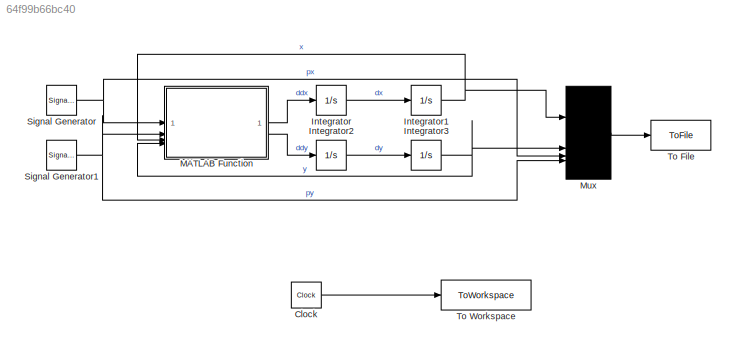
MODEL slx_64f99b66bc40
KIND model
CONFIG AbsTol = auto
CONFIG EnableMultiTasking = off
CONFIG FixedStep = auto
CONFIG MaxStep = auto
CONFIG MinStep = auto
CONFIG RelTol = 1e-3
CONFIG SampleTimeConstraint = Unconstrained
CONFIG SolverName = ode4
CONFIG StartTime = 0.0
CONFIG StopTime = t_stop
BLOCK [Clock] Clock
  DisplayTime = on
BLOCK [Integrator] Integrator
BLOCK [Integrator] Integrator1
BLOCK [Integrator] Integrator2
BLOCK [Integrator] Integrator3
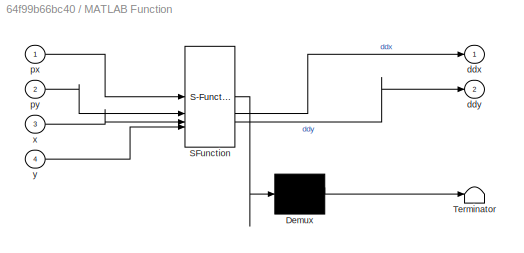
BLOCK [SubSystem] MATLAB Function
  ErrorFcn = Stateflow.Translate.translate
  PermitHierarchicalResolution = ExplicitOnly
  SFBlockType = MATLAB Function
  TreatAsAtomicUnit = on
BLOCK [Demux] MATLAB Function/ Demux 
  Outputs = 1
BLOCK [S-Function] MATLAB Function/ SFunction 
  EnableBusSupport = on
  FunctionName = sf_sfun
  PortCounts = [4 3]
  SFcnIsStateOwnerBlock = off
  SFunctionDeploymentMode = off
  Tag = Stateflow S-Function 2
BLOCK [Terminator] MATLAB Function/ Terminator 
BLOCK [Outport] MATLAB Function/ddx
BLOCK [Outport] MATLAB Function/ddy
  Port = 2
BLOCK [Inport] MATLAB Function/px
BLOCK [Inport] MATLAB Function/py
  Port = 2
BLOCK [Inport] MATLAB Function/x
  Port = 3
BLOCK [Inport] MATLAB Function/y
  Port = 4
BLOCK [Mux] Mux
  DisplayOption = bar
BLOCK [SignalGenerator] Signal Generator
  Amplitude = 0.3
  Frequency = 0.33
  Units = rad/sec
  WaveForm = square
BLOCK [SignalGenerator] Signal Generator1
  Amplitude = 0.3
  Frequency = 0.33
  Units = rad/sec
  WaveForm = square
BLOCK [ToFile] To File
  Filename = out.mat
BLOCK [ToWorkspace] To Workspace
  FixptAsFi = on
  MaxDataPoints = inf
  SampleTime = -1
  SaveFormat = Timeseries
  VariableName = simout
LINE Clock:1 -> To Workspace:1
NET Integrator1:1 -> MATLAB Function:3, Mux:1
LINE Integrator2:1 -> Integrator3:1
NET Integrator3:1 -> MATLAB Function:4, Mux:2
LINE Integrator:1 -> Integrator1:1
LINE MATLAB Function:1 -> Integrator:1
LINE MATLAB Function:2 -> Integrator2:1
LINE Mux:1 -> To File:1
NET Signal Generator1:1 -> MATLAB Function:2, Mux:4
NET Signal Generator:1 -> MATLAB Function:1, Mux:3
note: NET lines group one-source signal fan-out (src -> all destinations, sorted); 1:1 wires keep LINE
CHART MATLAB Function states=1 transitions=1
  STATE_LABEL 'eML_blk_kernel()'
  STATE_LABEL 'SCRIPT:\nfunction [ddx,ddy] = fcn(px,py,x,y)\ng=9.8;\nzc= 0.154;\nddx = (g/zc)*(x-px);\nddy = (g/zc)*(y-py);\n'
CHART  states=0 transitions=0
